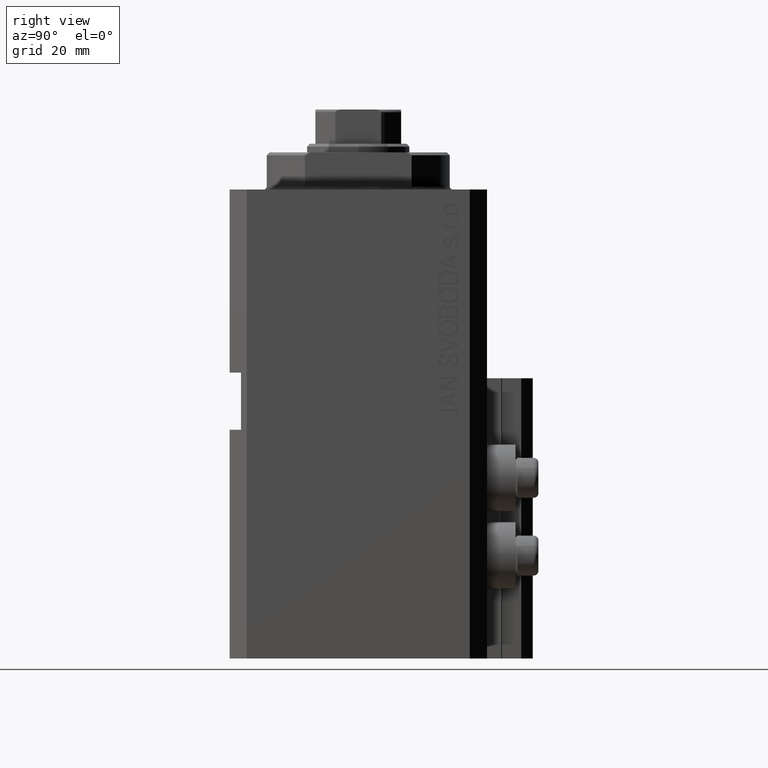
[diagram: clean part render]
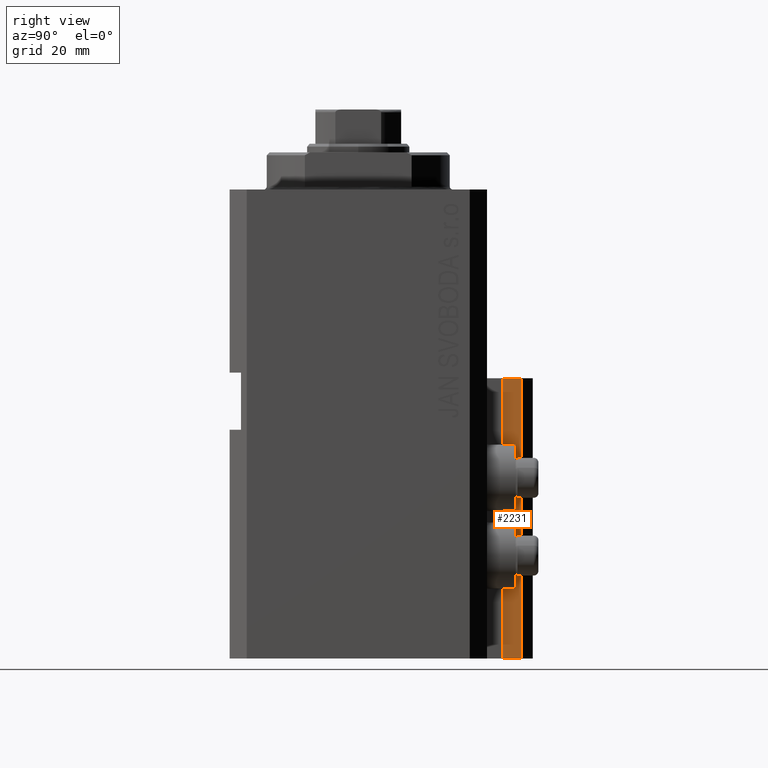
[diagram: same view with one face highlighted and labeled with its STEP entity id]
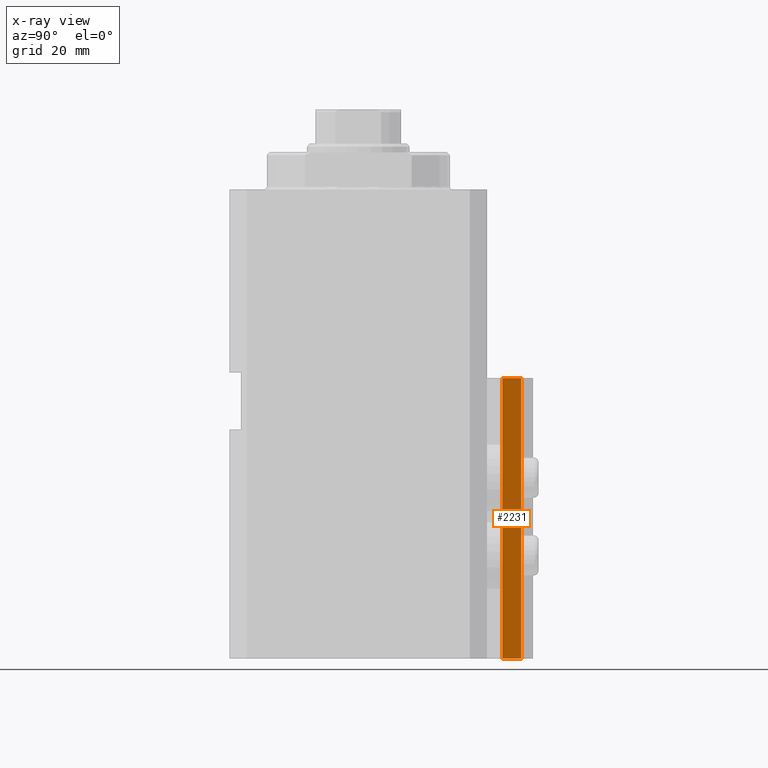
[diagram: x-ray of the same camera — body ghosted, the highlighted face saturated]
A machine part, right view. The second image highlights one B-rep face of the part: STEP entity #2231.
The next image is the same camera in x-ray: the body ghosted, the highlighted face saturated — about 0% of this face is hidden behind the body in this view.
In plain terms, the highlighted planar face has unit normal (1, 0, 0).
Its self-contained STEP definition (entity closure, byte-faithful):
#2231 = ADVANCED_FACE ( 'NONE', ( #8247 ), #19438, .T. ) ;
#3996 = ORIENTED_EDGE ( 'NONE', *, *, #28359, .F. ) ;
#5042 = VERTEX_POINT ( 'NONE', #5764 ) ;
#5764 = CARTESIAN_POINT ( 'NONE',  ( 12.00000000000000178, 28.49999999999950973, -33.00000000000000000 ) ) ;
#8247 = FACE_OUTER_BOUND ( 'NONE', #45402, .T. ) ;
#8474 = LINE ( 'NONE', #44975, #23594 ) ;
#9227 = DIRECTION ( 'NONE',  ( 0.000000000000000000, 1.000000000000000000, 0.000000000000000000 ) ) ;
#9876 = ORIENTED_EDGE ( 'NONE', *, *, #10377, .T. ) ;
#10368 = VERTEX_POINT ( 'NONE', #42605 ) ;
#10377 = EDGE_CURVE ( 'NONE', #37900, #5042, #42848, .T. ) ;
#10593 = ORIENTED_EDGE ( 'NONE', *, *, #30478, .T. ) ;
#13983 = DIRECTION ( 'NONE',  ( 0.000000000000000000, 0.000000000000000000, 1.000000000000000000 ) ) ;
#14683 = DIRECTION ( 'NONE',  ( 0.000000000000000000, 0.000000000000000000, -1.000000000000000000 ) ) ;
#18721 = CARTESIAN_POINT ( 'NONE',  ( 12.00000000000000178, 25.19999999999951257, -82.00000000000000000 ) ) ;
#19438 = PLANE ( 'NONE',  #27560 ) ;
#20590 = CARTESIAN_POINT ( 'NONE',  ( 12.00000000000000178, 28.49999999999950973, -82.00000000000000000 ) ) ;
#21231 = VECTOR ( 'NONE', #9227, 1000.000000000000000 ) ;
#23594 = VECTOR ( 'NONE', #37339, 1000.000000000000000 ) ;
#24705 = CARTESIAN_POINT ( 'NONE',  ( 12.00000000000000178, 28.49999999999950973, -82.00000000000000000 ) ) ;
#26251 = ORIENTED_EDGE ( 'NONE', *, *, #45984, .F. ) ;
#27560 = AXIS2_PLACEMENT_3D ( 'NONE', #18721, #33987, #14683 ) ;
#28359 = EDGE_CURVE ( 'NONE', #10368, #5042, #38559, .T. ) ;
#30478 = EDGE_CURVE ( 'NONE', #30532, #37900, #8474, .T. ) ;
#30532 = VERTEX_POINT ( 'NONE', #45454 ) ;
#31386 = CARTESIAN_POINT ( 'NONE',  ( 12.00000000000000355, 25.19999999999951257, -82.00000000000000000 ) ) ;
#32223 = VECTOR ( 'NONE', #39024, 1000.000000000000000 ) ;
#33987 = DIRECTION ( 'NONE',  ( 1.000000000000000000, 0.000000000000000000, 0.000000000000000000 ) ) ;
#37339 = DIRECTION ( 'NONE',  ( 0.000000000000000000, 1.000000000000000000, 0.000000000000000000 ) ) ;
#37900 = VERTEX_POINT ( 'NONE', #20590 ) ;
#38559 = LINE ( 'NONE', #42372, #21231 ) ;
#39024 = DIRECTION ( 'NONE',  ( 0.000000000000000000, 0.000000000000000000, 1.000000000000000000 ) ) ;
#41427 = VECTOR ( 'NONE', #13983, 1000.000000000000000 ) ;
#41666 = LINE ( 'NONE', #31386, #32223 ) ;
#42372 = CARTESIAN_POINT ( 'NONE',  ( 12.00000000000000178, 25.19999999999951257, -33.00000000000000000 ) ) ;
#42605 = CARTESIAN_POINT ( 'NONE',  ( 12.00000000000000355, 25.19999999999951257, -33.00000000000000000 ) ) ;
#42848 = LINE ( 'NONE', #24705, #41427 ) ;
#44975 = CARTESIAN_POINT ( 'NONE',  ( 12.00000000000000178, 25.19999999999951257, -82.00000000000000000 ) ) ;
#45402 = EDGE_LOOP ( 'NONE', ( #3996, #26251, #10593, #9876 ) ) ;
#45454 = CARTESIAN_POINT ( 'NONE',  ( 12.00000000000000355, 25.19999999999951257, -82.00000000000000000 ) ) ;
#45984 = EDGE_CURVE ( 'NONE', #30532, #10368, #41666, .T. ) ;